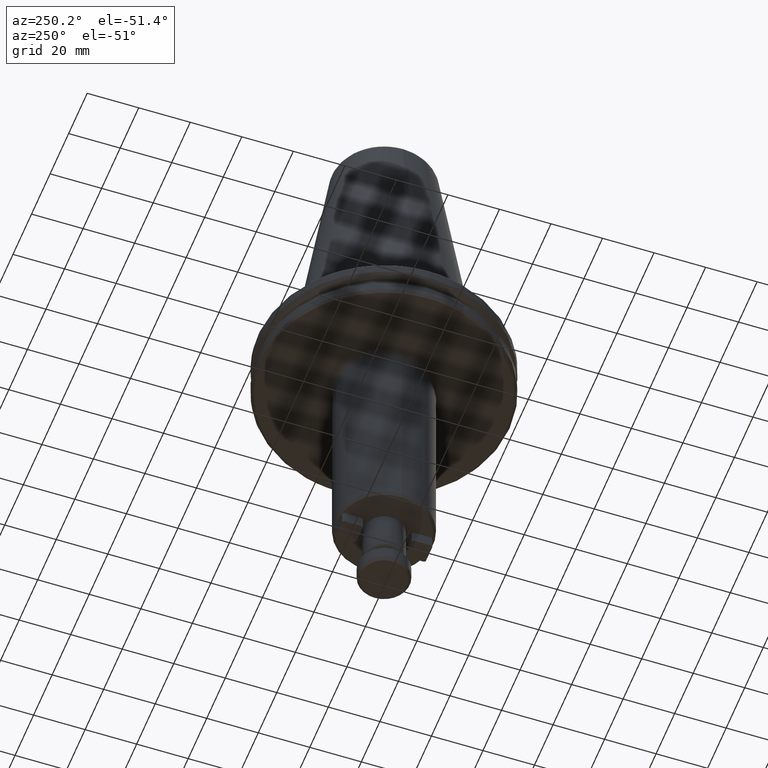
[diagram: clean part render]
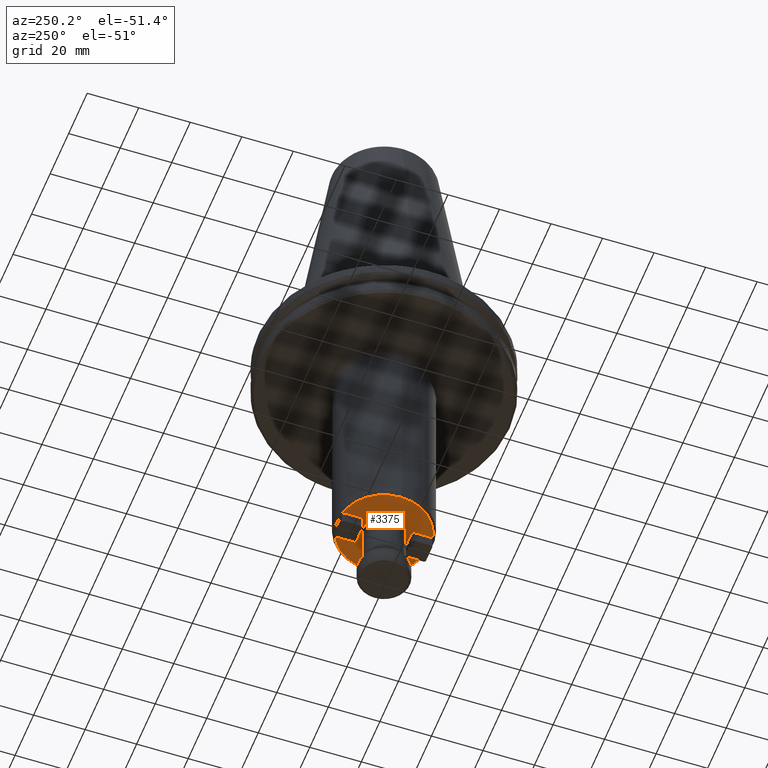
[diagram: same view with one face highlighted and labeled with its STEP entity id]
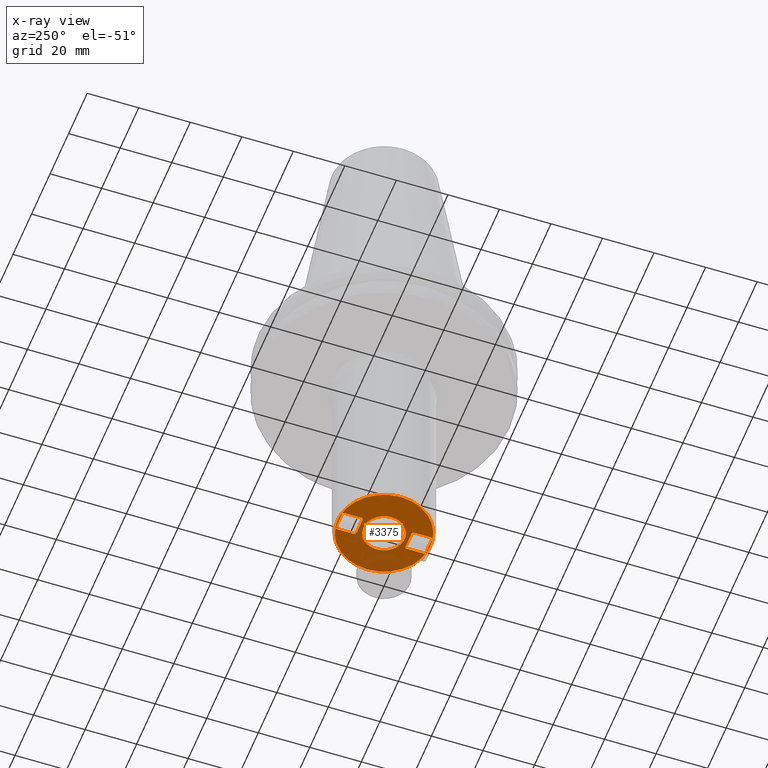
[diagram: x-ray of the same camera — body ghosted, the highlighted face saturated]
A machine part, auxiliary view. The second image highlights one B-rep face of the part: STEP entity #3375.
The next image is the same camera in x-ray: the body ghosted, the highlighted face saturated — about 15% of this face is hidden behind the body in this view.
In plain terms, the highlighted planar face has unit normal (0, 0, -1).
Its self-contained STEP definition (entity closure, byte-faithful):
#6 = EDGE_CURVE ( 'NONE', #3841, #1945, #3740, .T. ) ;
#18 = CARTESIAN_POINT ( 'NONE',  ( -3.499999999999971600, 17.50000000000000400, -100.0000000000000000 ) ) ;
#29 = DIRECTION ( 'NONE',  ( -0.7071067811865472400, -0.7071067811865479100, -0.0000000000000000000 ) ) ;
#39 = EDGE_CURVE ( 'NONE', #3742, #155, #1139, .T. ) ;
#53 = VECTOR ( 'NONE', #3446, 1000.000000000000000 ) ;
#62 = CIRCLE ( 'NONE', #3870, 8.000000000000000000 ) ;
#66 = LINE ( 'NONE', #366, #3263 ) ;
#87 = VERTEX_POINT ( 'NONE', #2891 ) ;
#140 = VERTEX_POINT ( 'NONE', #3107 ) ;
#153 = LINE ( 'NONE', #3707, #53 ) ;
#155 = VERTEX_POINT ( 'NONE', #3563 ) ;
#205 = DIRECTION ( 'NONE',  ( 1.000000000000000000, 0.0000000000000000000, 0.0000000000000000000 ) ) ;
#211 = DIRECTION ( 'NONE',  ( 1.000000000000000000, 0.0000000000000000000, 0.0000000000000000000 ) ) ;
#217 = CARTESIAN_POINT ( 'NONE',  ( 0.0000000000000000000, -9.500000000000000000, -100.0000000000000000 ) ) ;
#243 = DIRECTION ( 'NONE',  ( -1.000000000000000000, 0.0000000000000000000, -0.0000000000000000000 ) ) ;
#248 = PLANE ( 'NONE',  #3918 ) ;
#265 = CARTESIAN_POINT ( 'NONE',  ( 8.000000000000000000, 0.0000000000000000000, -100.0000000000000000 ) ) ;
#312 = VERTEX_POINT ( 'NONE', #3562 ) ;
#366 = CARTESIAN_POINT ( 'NONE',  ( 0.0000000000000000000, -17.50000000000000000, -100.0000000000000000 ) ) ;
#371 = VECTOR ( 'NONE', #4156, 1000.000000000000100 ) ;
#377 = ORIENTED_EDGE ( 'NONE', *, *, #1596, .T. ) ;
#378 = CARTESIAN_POINT ( 'NONE',  ( 4.000000000000001800, 16.99999999999995000, -100.0000000000000000 ) ) ;
#383 = EDGE_LOOP ( 'NONE', ( #3777, #3043 ) ) ;
#384 = DIRECTION ( 'NONE',  ( 1.000000000000000000, -0.0000000000000000000, 0.0000000000000000000 ) ) ;
#490 = EDGE_CURVE ( 'NONE', #3796, #1241, #153, .T. ) ;
#517 = CARTESIAN_POINT ( 'NONE',  ( -3.499999999999971600, -9.500000000000000000, -100.0000000000000000 ) ) ;
#569 = CARTESIAN_POINT ( 'NONE',  ( 3.499999999999974700, -9.500000000000000000, -100.0000000000000000 ) ) ;
#612 = ORIENTED_EDGE ( 'NONE', *, *, #2705, .T. ) ;
#637 = DIRECTION ( 'NONE',  ( 1.000000000000000000, 0.0000000000000000000, 0.0000000000000000000 ) ) ;
#639 = VECTOR ( 'NONE', #3187, 1000.000000000000100 ) ;
#669 = ORIENTED_EDGE ( 'NONE', *, *, #39, .T. ) ;
#700 = VERTEX_POINT ( 'NONE', #2237 ) ;
#737 = DIRECTION ( 'NONE',  ( 1.000000000000000000, -0.0000000000000000000, 0.0000000000000000000 ) ) ;
#744 = CARTESIAN_POINT ( 'NONE',  ( 0.0000000000000000000, 9.500000000000001800, -100.0000000000000000 ) ) ;
#802 = LINE ( 'NONE', #1206, #2454 ) ;
#809 = VERTEX_POINT ( 'NONE', #1905 ) ;
#816 = CARTESIAN_POINT ( 'NONE',  ( -4.000000000000002700, -18.00000000000000400, -100.0000000000000000 ) ) ;
#855 = ORIENTED_EDGE ( 'NONE', *, *, #1013, .T. ) ;
#859 = LINE ( 'NONE', #1357, #2418 ) ;
#895 = DIRECTION ( 'NONE',  ( 0.0000000000000000000, 1.000000000000000000, 0.0000000000000000000 ) ) ;
#919 = DIRECTION ( 'NONE',  ( 0.0000000000000000000, 0.0000000000000000000, -1.000000000000000000 ) ) ;
#942 = EDGE_LOOP ( 'NONE', ( #4014, #2667, #1280, #855, #2619, #612, #2561, #1883 ) ) ;
#948 = LINE ( 'NONE', #816, #2612 ) ;
#967 = AXIS2_PLACEMENT_3D ( 'NONE', #4069, #2202, #205 ) ;
#986 = EDGE_CURVE ( 'NONE', #87, #3349, #802, .T. ) ;
#1013 = EDGE_CURVE ( 'NONE', #3864, #3796, #2563, .T. ) ;
#1017 = CARTESIAN_POINT ( 'NONE',  ( 4.000000000000002700, 16.99999999999994700, -100.0000000000000000 ) ) ;
#1062 = EDGE_CURVE ( 'NONE', #155, #87, #1579, .T. ) ;
#1111 = ORIENTED_EDGE ( 'NONE', *, *, #3946, .F. ) ;
#1118 = CARTESIAN_POINT ( 'NONE',  ( 4.000000000000002700, -18.00000000000000400, -100.0000000000000000 ) ) ;
#1121 = LINE ( 'NONE', #3827, #3628 ) ;
#1131 = EDGE_CURVE ( 'NONE', #3828, #3864, #1374, .T. ) ;
#1135 = CARTESIAN_POINT ( 'NONE',  ( 3.499999999999971600, 9.500000000000000000, -100.0000000000000000 ) ) ;
#1139 = LINE ( 'NONE', #4090, #371 ) ;
#1145 = CARTESIAN_POINT ( 'NONE',  ( 3.499999999999945800, 17.50000000000000000, -100.0000000000000000 ) ) ;
#1182 = DIRECTION ( 'NONE',  ( 0.7071067811865472400, 0.7071067811865479100, -0.0000000000000000000 ) ) ;
#1206 = CARTESIAN_POINT ( 'NONE',  ( 4.000000000000002700, -10.00000000000002800, -100.0000000000000000 ) ) ;
#1215 = DIRECTION ( 'NONE',  ( -0.7071067811865474600, 0.7071067811865474600, -0.0000000000000000000 ) ) ;
#1216 = CARTESIAN_POINT ( 'NONE',  ( -3.499999999999975100, 17.50000000000000000, -100.0000000000000000 ) ) ;
#1241 = VERTEX_POINT ( 'NONE', #378 ) ;
#1277 = EDGE_CURVE ( 'NONE', #700, #3742, #66, .T. ) ;
#1280 = ORIENTED_EDGE ( 'NONE', *, *, #1131, .T. ) ;
#1311 = FACE_BOUND ( 'NONE', #942, .T. ) ;
#1352 = EDGE_CURVE ( 'NONE', #3349, #312, #3767, .T. ) ;
#1355 = DIRECTION ( 'NONE',  ( -0.7071067811865479100, 0.7071067811865472400, -0.0000000000000000000 ) ) ;
#1357 = CARTESIAN_POINT ( 'NONE',  ( -4.000000000000002700, 10.00000000000002800, -100.0000000000000000 ) ) ;
#1374 = LINE ( 'NONE', #744, #2052 ) ;
#1476 = VECTOR ( 'NONE', #895, 1000.000000000000000 ) ;
#1485 = CIRCLE ( 'NONE', #3514, 8.000000000000000000 ) ;
#1545 = ORIENTED_EDGE ( 'NONE', *, *, #1352, .T. ) ;
#1569 = FACE_BOUND ( 'NONE', #383, .T. ) ;
#1579 = LINE ( 'NONE', #1118, #1476 ) ;
#1596 = EDGE_CURVE ( 'NONE', #312, #3293, #2519, .T. ) ;
#1633 = LINE ( 'NONE', #1216, #639 ) ;
#1697 = DIRECTION ( 'NONE',  ( 0.7071067811865474600, -0.7071067811865474600, -0.0000000000000000000 ) ) ;
#1738 = CIRCLE ( 'NONE', #967, 18.00000000000000000 ) ;
#1771 = CARTESIAN_POINT ( 'NONE',  ( -4.000000000000001800, -16.99999999999994700, -100.0000000000000000 ) ) ;
#1789 = ORIENTED_EDGE ( 'NONE', *, *, #2191, .T. ) ;
#1809 = CARTESIAN_POINT ( 'NONE',  ( 0.0000000000000000000, 0.0000000000000000000, -100.0000000000000000 ) ) ;
#1815 = ORIENTED_EDGE ( 'NONE', *, *, #2994, .F. ) ;
#1883 = ORIENTED_EDGE ( 'NONE', *, *, #3052, .T. ) ;
#1889 = VERTEX_POINT ( 'NONE', #265 ) ;
#1905 = CARTESIAN_POINT ( 'NONE',  ( -4.000000000000004400, 10.00000000000003000, -100.0000000000000000 ) ) ;
#1945 = VERTEX_POINT ( 'NONE', #18 ) ;
#2052 = VECTOR ( 'NONE', #737, 1000.000000000000000 ) ;
#2150 = DIRECTION ( 'NONE',  ( 1.000000000000000000, 0.0000000000000000000, 0.0000000000000000000 ) ) ;
#2191 = EDGE_CURVE ( 'NONE', #2405, #700, #1121, .T. ) ;
#2202 = DIRECTION ( 'NONE',  ( 0.0000000000000000000, -0.0000000000000000000, 1.000000000000000000 ) ) ;
#2208 = DIRECTION ( 'NONE',  ( 0.0000000000000000000, -0.0000000000000000000, 1.000000000000000000 ) ) ;
#2236 = VERTEX_POINT ( 'NONE', #2591 ) ;
#2237 = CARTESIAN_POINT ( 'NONE',  ( -3.499999999999945800, -17.50000000000000000, -100.0000000000000000 ) ) ;
#2270 = LINE ( 'NONE', #3900, #3029 ) ;
#2356 = FACE_BOUND ( 'NONE', #3909, .T. ) ;
#2402 = CARTESIAN_POINT ( 'NONE',  ( 3.499999999999971100, -17.50000000000000400, -100.0000000000000000 ) ) ;
#2405 = VERTEX_POINT ( 'NONE', #1771 ) ;
#2417 = EDGE_CURVE ( 'NONE', #1889, #2236, #1485, .T. ) ;
#2418 = VECTOR ( 'NONE', #1697, 1000.000000000000100 ) ;
#2422 = VECTOR ( 'NONE', #29, 1000.000000000000000 ) ;
#2447 = FACE_OUTER_BOUND ( 'NONE', #3995, .T. ) ;
#2454 = VECTOR ( 'NONE', #1215, 1000.000000000000100 ) ;
#2492 = EDGE_CURVE ( 'NONE', #3293, #2405, #2270, .T. ) ;
#2519 = LINE ( 'NONE', #517, #2422 ) ;
#2539 = CARTESIAN_POINT ( 'NONE',  ( -3.999999999999999100, -10.00000000000003000, -100.0000000000000000 ) ) ;
#2561 = ORIENTED_EDGE ( 'NONE', *, *, #6, .T. ) ;
#2563 = LINE ( 'NONE', #1135, #4016 ) ;
#2591 = CARTESIAN_POINT ( 'NONE',  ( -8.000000000000000000, 9.797174393178825700E-016, -100.0000000000000000 ) ) ;
#2612 = VECTOR ( 'NONE', #3121, 1000.000000000000000 ) ;
#2619 = ORIENTED_EDGE ( 'NONE', *, *, #490, .T. ) ;
#2667 = ORIENTED_EDGE ( 'NONE', *, *, #3576, .T. ) ;
#2705 = EDGE_CURVE ( 'NONE', #1241, #3841, #2826, .T. ) ;
#2771 = CARTESIAN_POINT ( 'NONE',  ( 3.999999999999999100, 10.00000000000003000, -100.0000000000000000 ) ) ;
#2826 = LINE ( 'NONE', #1017, #3469 ) ;
#2889 = VECTOR ( 'NONE', #4152, 1000.000000000000000 ) ;
#2891 = CARTESIAN_POINT ( 'NONE',  ( 4.000000000000005300, -10.00000000000003000, -100.0000000000000000 ) ) ;
#2893 = ORIENTED_EDGE ( 'NONE', *, *, #1277, .T. ) ;
#2924 = VECTOR ( 'NONE', #243, 1000.000000000000000 ) ;
#2928 = EDGE_CURVE ( 'NONE', #2236, #1889, #62, .T. ) ;
#2948 = EDGE_CURVE ( 'NONE', #3053, #809, #948, .T. ) ;
#2994 = EDGE_CURVE ( 'NONE', #140, #3262, #1738, .T. ) ;
#2999 = DIRECTION ( 'NONE',  ( 0.0000000000000000000, 0.0000000000000000000, 1.000000000000000000 ) ) ;
#3004 = ORIENTED_EDGE ( 'NONE', *, *, #2492, .T. ) ;
#3029 = VECTOR ( 'NONE', #3076, 1000.000000000000000 ) ;
#3043 = ORIENTED_EDGE ( 'NONE', *, *, #2928, .T. ) ;
#3052 = EDGE_CURVE ( 'NONE', #1945, #3053, #1633, .T. ) ;
#3053 = VERTEX_POINT ( 'NONE', #4093 ) ;
#3076 = DIRECTION ( 'NONE',  ( -0.0000000000000000000, -1.000000000000000000, -0.0000000000000000000 ) ) ;
#3107 = CARTESIAN_POINT ( 'NONE',  ( -18.00000000000000000, 2.265596578422603000E-015, -100.0000000000000000 ) ) ;
#3121 = DIRECTION ( 'NONE',  ( -0.0000000000000000000, -1.000000000000000000, -0.0000000000000000000 ) ) ;
#3187 = DIRECTION ( 'NONE',  ( -0.7071067811865474600, -0.7071067811865474600, -0.0000000000000000000 ) ) ;
#3202 = CARTESIAN_POINT ( 'NONE',  ( 0.0000000000000000000, 0.0000000000000000000, -100.0000000000000000 ) ) ;
#3214 = DIRECTION ( 'NONE',  ( -1.000000000000000000, 0.0000000000000000000, -0.0000000000000000000 ) ) ;
#3216 = ORIENTED_EDGE ( 'NONE', *, *, #986, .T. ) ;
#3262 = VERTEX_POINT ( 'NONE', #3802 ) ;
#3263 = VECTOR ( 'NONE', #384, 1000.000000000000000 ) ;
#3293 = VERTEX_POINT ( 'NONE', #2539 ) ;
#3349 = VERTEX_POINT ( 'NONE', #569 ) ;
#3375 = ADVANCED_FACE ( 'NONE', ( #1311, #2447, #1569, #2356 ), #248, .T. ) ;
#3438 = CARTESIAN_POINT ( 'NONE',  ( -3.499999999999974700, 9.500000000000001800, -100.0000000000000000 ) ) ;
#3446 = DIRECTION ( 'NONE',  ( 0.0000000000000000000, 1.000000000000000000, 0.0000000000000000000 ) ) ;
#3469 = VECTOR ( 'NONE', #1355, 1000.000000000000000 ) ;
#3514 = AXIS2_PLACEMENT_3D ( 'NONE', #3202, #2999, #637 ) ;
#3562 = CARTESIAN_POINT ( 'NONE',  ( -3.499999999999972000, -9.500000000000001800, -100.0000000000000000 ) ) ;
#3563 = CARTESIAN_POINT ( 'NONE',  ( 4.000000000000001800, -16.99999999999997900, -100.0000000000000000 ) ) ;
#3576 = EDGE_CURVE ( 'NONE', #809, #3828, #859, .T. ) ;
#3628 = VECTOR ( 'NONE', #3907, 1000.000000000000000 ) ;
#3654 = ORIENTED_EDGE ( 'NONE', *, *, #1062, .T. ) ;
#3707 = CARTESIAN_POINT ( 'NONE',  ( 3.999999999999999100, -18.00000000000000400, -100.0000000000000000 ) ) ;
#3740 = LINE ( 'NONE', #3837, #2889 ) ;
#3742 = VERTEX_POINT ( 'NONE', #2402 ) ;
#3764 = CARTESIAN_POINT ( 'NONE',  ( 3.499999999999972000, 9.500000000000001800, -100.0000000000000000 ) ) ;
#3767 = LINE ( 'NONE', #217, #2924 ) ;
#3777 = ORIENTED_EDGE ( 'NONE', *, *, #2417, .T. ) ;
#3796 = VERTEX_POINT ( 'NONE', #2771 ) ;
#3802 = CARTESIAN_POINT ( 'NONE',  ( 18.00000000000000000, 0.0000000000000000000, -100.0000000000000000 ) ) ;
#3826 = CARTESIAN_POINT ( 'NONE',  ( 0.0000000000000000000, -18.00000000000000400, -100.0000000000000000 ) ) ;
#3827 = CARTESIAN_POINT ( 'NONE',  ( -4.000000000000002700, -16.99999999999994700, -100.0000000000000000 ) ) ;
#3828 = VERTEX_POINT ( 'NONE', #3438 ) ;
#3837 = CARTESIAN_POINT ( 'NONE',  ( 0.0000000000000000000, 17.50000000000000000, -100.0000000000000000 ) ) ;
#3841 = VERTEX_POINT ( 'NONE', #1145 ) ;
#3864 = VERTEX_POINT ( 'NONE', #3764 ) ;
#3870 = AXIS2_PLACEMENT_3D ( 'NONE', #1809, #4025, #2150 ) ;
#3900 = CARTESIAN_POINT ( 'NONE',  ( -3.999999999999999100, -18.00000000000000400, -100.0000000000000000 ) ) ;
#3907 = DIRECTION ( 'NONE',  ( 0.7071067811865479100, -0.7071067811865472400, -0.0000000000000000000 ) ) ;
#3909 = EDGE_LOOP ( 'NONE', ( #3654, #3216, #1545, #377, #3004, #1789, #2893, #669 ) ) ;
#3918 = AXIS2_PLACEMENT_3D ( 'NONE', #3826, #919, #3214 ) ;
#3946 = EDGE_CURVE ( 'NONE', #3262, #140, #4112, .T. ) ;
#3995 = EDGE_LOOP ( 'NONE', ( #1111, #1815 ) ) ;
#4014 = ORIENTED_EDGE ( 'NONE', *, *, #2948, .T. ) ;
#4016 = VECTOR ( 'NONE', #1182, 1000.000000000000000 ) ;
#4025 = DIRECTION ( 'NONE',  ( 0.0000000000000000000, 0.0000000000000000000, 1.000000000000000000 ) ) ;
#4069 = CARTESIAN_POINT ( 'NONE',  ( 0.0000000000000000000, 0.0000000000000000000, -100.0000000000000000 ) ) ;
#4073 = CARTESIAN_POINT ( 'NONE',  ( 0.0000000000000000000, 0.0000000000000000000, -100.0000000000000000 ) ) ;
#4090 = CARTESIAN_POINT ( 'NONE',  ( 3.499999999999975100, -17.50000000000000000, -100.0000000000000000 ) ) ;
#4093 = CARTESIAN_POINT ( 'NONE',  ( -4.000000000000001800, 16.99999999999997500, -100.0000000000000000 ) ) ;
#4112 = CIRCLE ( 'NONE', #4147, 18.00000000000000000 ) ;
#4147 = AXIS2_PLACEMENT_3D ( 'NONE', #4073, #2208, #211 ) ;
#4152 = DIRECTION ( 'NONE',  ( -1.000000000000000000, 0.0000000000000000000, -0.0000000000000000000 ) ) ;
#4156 = DIRECTION ( 'NONE',  ( 0.7071067811865474600, 0.7071067811865474600, -0.0000000000000000000 ) ) ;